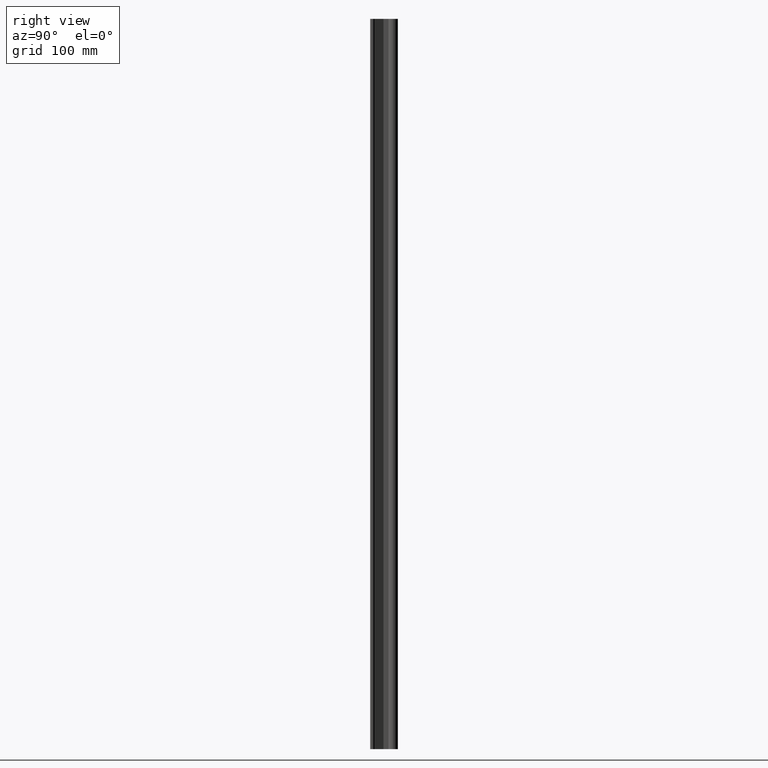
[diagram: clean part render]
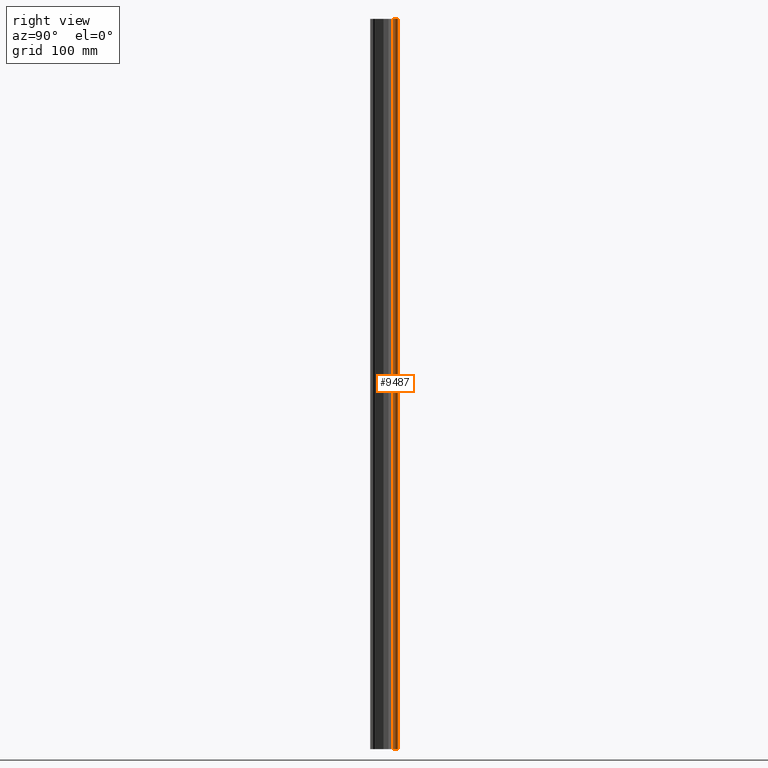
[diagram: same view with one face highlighted and labeled with its STEP entity id]
A machine part, right view. The second image highlights one B-rep face of the part: STEP entity #9487.
In plain terms, the highlighted cylindrical surface (edge-blend (fillet) strip) has radius 6.35 mm, axis along (0, 0, 1).
Its self-contained STEP definition (entity closure, byte-faithful):
#134 = CARTESIAN_POINT ( 'NONE',  ( 0.2500000000000001110, 1.125000000000000222, -36.00000000000000000 ) ) ;
#434 = DIRECTION ( 'NONE',  ( 1.000000000000000000, 0.000000000000000000, 0.000000000000000000 ) ) ;
#719 = DIRECTION ( 'NONE',  ( 0.000000000000000000, 0.000000000000000000, 1.000000000000000000 ) ) ;
#1076 = CARTESIAN_POINT ( 'NONE',  ( -0.2500000000000001110, 1.125000000000000222, -36.00000000000000000 ) ) ;
#1118 = CIRCLE ( 'NONE', #1691, 0.2500000000000001110 ) ;
#1131 = DIRECTION ( 'NONE',  ( 0.000000000000000000, 0.000000000000000000, 1.000000000000000000 ) ) ;
#1189 = VERTEX_POINT ( 'NONE', #3985 ) ;
#1612 = DIRECTION ( 'NONE',  ( 0.000000000000000000, 0.000000000000000000, 1.000000000000000000 ) ) ;
#1691 = AXIS2_PLACEMENT_3D ( 'NONE', #9598, #10463, #434 ) ;
#1853 = EDGE_CURVE ( 'NONE', #9920, #11137, #4026, .T. ) ;
#1973 = AXIS2_PLACEMENT_3D ( 'NONE', #8985, #719, #4392 ) ;
#2830 = FACE_OUTER_BOUND ( 'NONE', #3270, .T. ) ;
#3270 = EDGE_LOOP ( 'NONE', ( #6301, #11465, #9580, #6665 ) ) ;
#3985 = CARTESIAN_POINT ( 'NONE',  ( 0.2500000000000001110, 1.125000000000000222, -36.00000000000000000 ) ) ;
#4026 = CIRCLE ( 'NONE', #11916, 0.2500000000000001110 ) ;
#4392 = DIRECTION ( 'NONE',  ( 1.000000000000000000, 0.000000000000000000, 0.000000000000000000 ) ) ;
#4877 = CARTESIAN_POINT ( 'NONE',  ( -0.2500000000000001110, 1.125000000000000222, 0.000000000000000000 ) ) ;
#6146 = DIRECTION ( 'NONE',  ( 1.000000000000000000, 0.000000000000000000, 0.000000000000000000 ) ) ;
#6301 = ORIENTED_EDGE ( 'NONE', *, *, #6352, .T. ) ;
#6352 = EDGE_CURVE ( 'NONE', #1189, #9891, #1118, .T. ) ;
#6517 = CYLINDRICAL_SURFACE ( 'NONE', #1973, 0.2500000000000001110 ) ;
#6665 = ORIENTED_EDGE ( 'NONE', *, *, #10580, .F. ) ;
#6707 = EDGE_CURVE ( 'NONE', #9891, #11137, #8438, .T. ) ;
#6845 = CARTESIAN_POINT ( 'NONE',  ( 0.2500000000000001110, 1.125000000000000222, 0.000000000000000000 ) ) ;
#8056 = VECTOR ( 'NONE', #1131, 39.37007874015748143 ) ;
#8129 = CARTESIAN_POINT ( 'NONE',  ( -0.2500000000000001110, 1.125000000000000222, -36.00000000000000000 ) ) ;
#8197 = LINE ( 'NONE', #134, #11507 ) ;
#8438 = LINE ( 'NONE', #1076, #8056 ) ;
#8985 = CARTESIAN_POINT ( 'NONE',  ( 0.000000000000000000, 1.125000000000000222, -36.00000000000000000 ) ) ;
#9165 = DIRECTION ( 'NONE',  ( 0.000000000000000000, 0.000000000000000000, 1.000000000000000000 ) ) ;
#9487 = ADVANCED_FACE ( 'NONE', ( #2830 ), #6517, .T. ) ;
#9580 = ORIENTED_EDGE ( 'NONE', *, *, #1853, .F. ) ;
#9598 = CARTESIAN_POINT ( 'NONE',  ( 0.000000000000000000, 1.125000000000000222, -36.00000000000000000 ) ) ;
#9890 = CARTESIAN_POINT ( 'NONE',  ( 0.000000000000000000, 1.125000000000000222, 0.000000000000000000 ) ) ;
#9891 = VERTEX_POINT ( 'NONE', #8129 ) ;
#9920 = VERTEX_POINT ( 'NONE', #6845 ) ;
#10463 = DIRECTION ( 'NONE',  ( 0.000000000000000000, 0.000000000000000000, 1.000000000000000000 ) ) ;
#10580 = EDGE_CURVE ( 'NONE', #1189, #9920, #8197, .T. ) ;
#11137 = VERTEX_POINT ( 'NONE', #4877 ) ;
#11465 = ORIENTED_EDGE ( 'NONE', *, *, #6707, .T. ) ;
#11507 = VECTOR ( 'NONE', #9165, 39.37007874015748143 ) ;
#11916 = AXIS2_PLACEMENT_3D ( 'NONE', #9890, #1612, #6146 ) ;